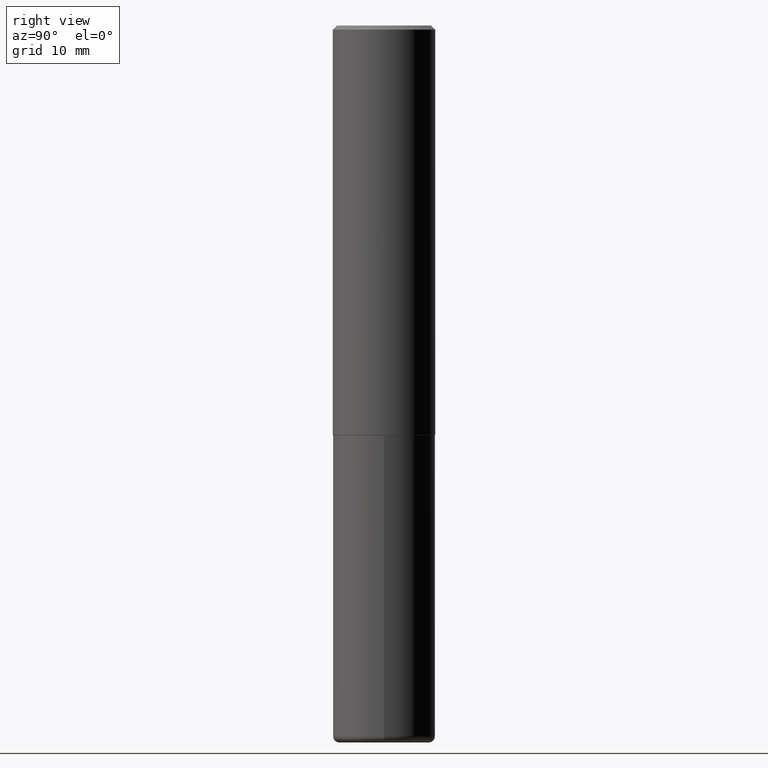
[diagram: clean part render]
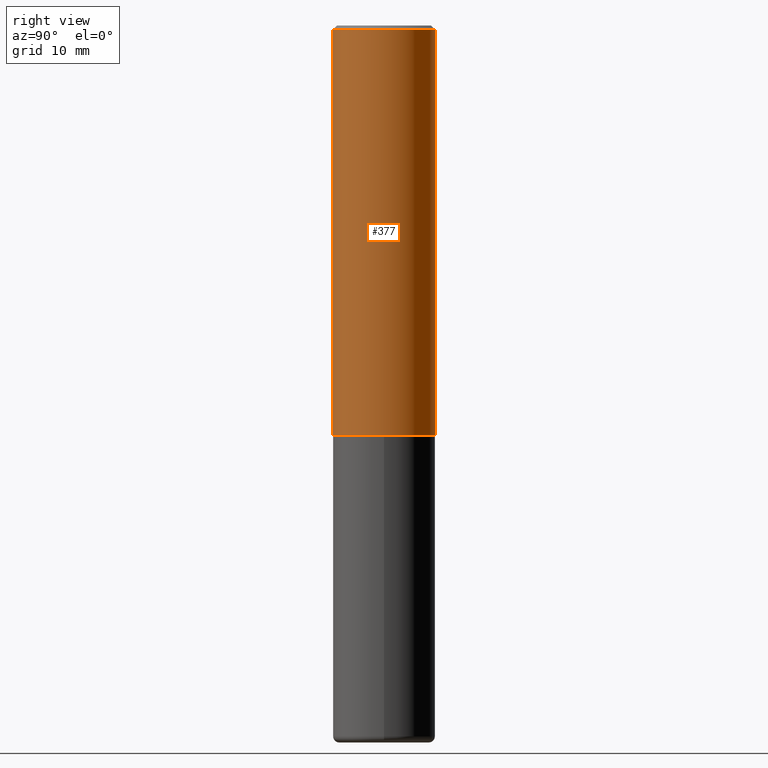
[diagram: same view with one face highlighted and labeled with its STEP entity id]
A machine part, right view. The second image highlights one B-rep face of the part: STEP entity #377.
In plain terms, the highlighted cylindrical surface (partial cylindrical patch) has radius 6.35 mm, axis along (-0, 0, 1).
Its self-contained STEP definition (entity closure, byte-faithful):
#3 = ORIENTED_EDGE ( 'NONE', *, *, #232, .F. ) ;
#4 = FACE_OUTER_BOUND ( 'NONE', #257, .T. ) ;
#29 = ORIENTED_EDGE ( 'NONE', *, *, #65, .T. ) ;
#65 = EDGE_CURVE ( 'NONE', #292, #368, #159, .T. ) ;
#87 = CARTESIAN_POINT ( 'NONE',  ( 0.000000000000000000, 0.000000000000000000, 0.000000000000000000 ) ) ;
#93 = ORIENTED_EDGE ( 'NONE', *, *, #343, .F. ) ;
#96 = VECTOR ( 'NONE', #151, 39.37007874015748143 ) ;
#121 = LINE ( 'NONE', #254, #96 ) ;
#148 = DIRECTION ( 'NONE',  ( -6.982962677686265922E-15, -1.000000000000000000, 3.278217592397112312E-15 ) ) ;
#151 = DIRECTION ( 'NONE',  ( -2.444078991372175563E-29, 3.493471632758652550E-15, 1.000000000000000000 ) ) ;
#157 = ORIENTED_EDGE ( 'NONE', *, *, #251, .T. ) ;
#159 = CIRCLE ( 'NONE', #397, 0.2500000000000002776 ) ;
#180 = CARTESIAN_POINT ( 'NONE',  ( 4.885713903752978284E-29, -6.983449793884546288E-15, -1.998999999999999888 ) ) ;
#184 = CARTESIAN_POINT ( 'NONE',  ( 4.888157982744373443E-31, -6.986943265517335816E-17, -0.02000000000000009062 ) ) ;
#192 = CARTESIAN_POINT ( 'NONE',  ( -1.715124499442882496E-15, -0.2500000000000001110, -0.01999999999999921632 ) ) ;
#193 = DIRECTION ( 'NONE',  ( -2.444078991372175563E-29, 3.493471632758652550E-15, 1.000000000000000000 ) ) ;
#194 = VERTEX_POINT ( 'NONE', #341 ) ;
#195 = CARTESIAN_POINT ( 'NONE',  ( 1.776356839400276103E-15, 0.2499999999999932832, -1.999000000000000776 ) ) ;
#214 = CIRCLE ( 'NONE', #367, 0.2500000000000000555 ) ;
#215 = DIRECTION ( 'NONE',  ( -2.444078991372175563E-29, 3.493471632758652550E-15, 1.000000000000000000 ) ) ;
#225 = DIRECTION ( 'NONE',  ( -2.444078991372175563E-29, 3.493471632758652550E-15, 1.000000000000000000 ) ) ;
#227 = LINE ( 'NONE', #349, #305 ) ;
#231 = CYLINDRICAL_SURFACE ( 'NONE', #391, 0.2500000000000001110 ) ;
#232 = EDGE_CURVE ( 'NONE', #330, #194, #214, .T. ) ;
#251 = EDGE_CURVE ( 'NONE', #368, #194, #121, .T. ) ;
#254 = CARTESIAN_POINT ( 'NONE',  ( 1.776356839400251254E-15, 0.2500000000000001110, -8.733679081896635319E-16 ) ) ;
#257 = EDGE_LOOP ( 'NONE', ( #29, #157, #3, #93 ) ) ;
#286 = CARTESIAN_POINT ( 'NONE',  ( -1.745740669421519543E-15, -0.2500000000000072720, -1.998999999999999000 ) ) ;
#292 = VERTEX_POINT ( 'NONE', #286 ) ;
#305 = VECTOR ( 'NONE', #193, 39.37007874015748143 ) ;
#306 = DIRECTION ( 'NONE',  ( -6.982962677686265133E-15, -1.000000000000000000, 3.500180241882336472E-15 ) ) ;
#330 = VERTEX_POINT ( 'NONE', #192 ) ;
#341 = CARTESIAN_POINT ( 'NONE',  ( 1.745740669421567269E-15, 0.2499999999999999722, -0.02000000000000096492 ) ) ;
#343 = EDGE_CURVE ( 'NONE', #292, #330, #227, .T. ) ;
#349 = CARTESIAN_POINT ( 'NONE',  ( -1.745740669421567467E-15, -0.2500000000000001110, 8.733679081896635319E-16 ) ) ;
#360 = DIRECTION ( 'NONE',  ( -2.444078991372175563E-29, 3.493471632758652550E-15, 1.000000000000000000 ) ) ;
#367 = AXIS2_PLACEMENT_3D ( 'NONE', #184, #215, #306 ) ;
#368 = VERTEX_POINT ( 'NONE', #195 ) ;
#377 = ADVANCED_FACE ( 'NONE', ( #4 ), #231, .T. ) ;
#391 = AXIS2_PLACEMENT_3D ( 'NONE', #87, #225, #416 ) ;
#397 = AXIS2_PLACEMENT_3D ( 'NONE', #180, #360, #148 ) ;
#416 = DIRECTION ( 'NONE',  ( -6.982962677686266711E-15, -1.000000000000000000, 3.493471632758652550E-15 ) ) ;